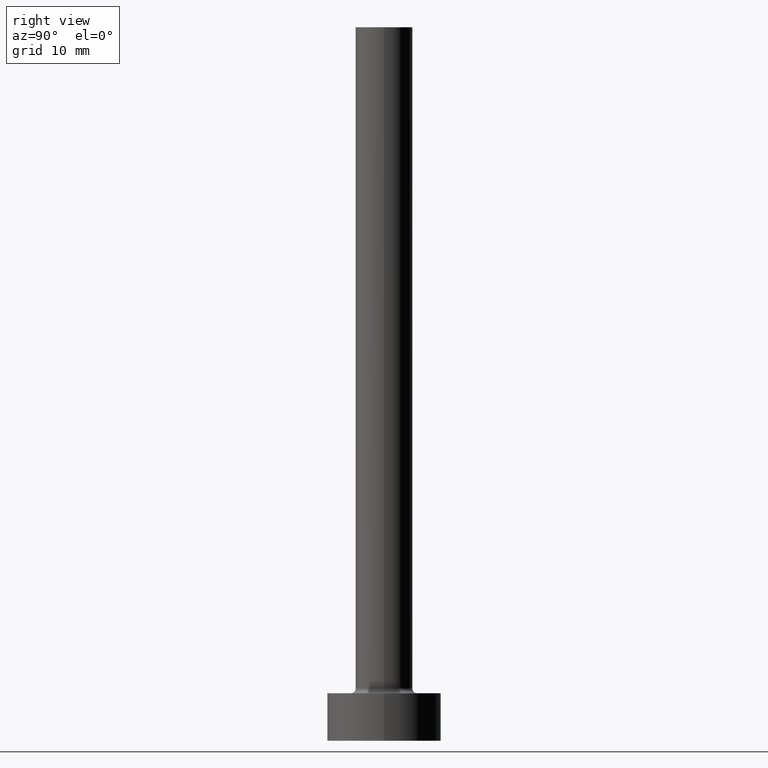
[diagram: clean part render]
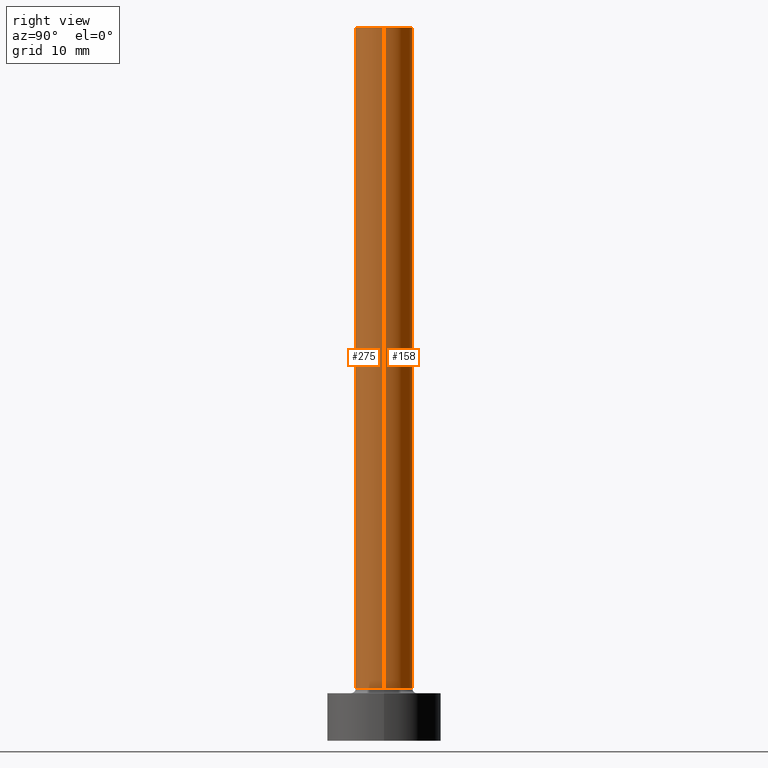
[diagram: same view with one multi-face feature highlighted, each face labeled with its STEP entity id]
A machine part, right view. The highlighted faces form ONE feature: a constant-radius fillet chain: 2 tangent blend faces with common blend radius 3 mm. The faces share edges in the B-rep.
Their STEP definitions:
[1] entity #158 (Cylinder):
#14 = VERTEX_POINT ( 'NONE', #420 ) ;
#34 = CIRCLE ( 'NONE', #293, 3.000000000000000444 ) ;
#40 = EDGE_CURVE ( 'NONE', #222, #290, #380, .T. ) ;
#44 = CIRCLE ( 'NONE', #403, 3.000000000000000444 ) ;
#59 = CARTESIAN_POINT ( 'NONE',  ( 3.000000000000000444, 3.673940397442060361E-16, 5.500000000000005329 ) ) ;
#62 = AXIS2_PLACEMENT_3D ( 'NONE', #427, #81, #248 ) ;
#81 = DIRECTION ( 'NONE',  ( -0.000000000000000000, -0.000000000000000000, -1.000000000000000000 ) ) ;
#85 = VECTOR ( 'NONE', #384, 1000.000000000000000 ) ;
#92 = DIRECTION ( 'NONE',  ( 0.000000000000000000, 0.000000000000000000, 1.000000000000000000 ) ) ;
#158 = ADVANCED_FACE ( 'NONE', ( #314 ), #286, .T. ) ;
#198 = EDGE_CURVE ( 'NONE', #14, #222, #34, .T. ) ;
#207 = CARTESIAN_POINT ( 'NONE',  ( -3.000000000000000444, 0.000000000000000000, 75.00000000000001421 ) ) ;
#222 = VERTEX_POINT ( 'NONE', #207 ) ;
#228 = DIRECTION ( 'NONE',  ( 0.000000000000000000, 0.000000000000000000, 1.000000000000000000 ) ) ;
#231 = CARTESIAN_POINT ( 'NONE',  ( -3.000000000000000444, 0.000000000000000000, 5.500000000000005329 ) ) ;
#238 = DIRECTION ( 'NONE',  ( 1.000000000000000000, 0.000000000000000000, 0.000000000000000000 ) ) ;
#239 = VECTOR ( 'NONE', #372, 1000.000000000000000 ) ;
#248 = DIRECTION ( 'NONE',  ( -1.000000000000000000, 0.000000000000000000, 0.000000000000000000 ) ) ;
#264 = CARTESIAN_POINT ( 'NONE',  ( 0.000000000000000000, 0.000000000000000000, 75.00000000000001421 ) ) ;
#273 = VERTEX_POINT ( 'NONE', #59 ) ;
#286 = CYLINDRICAL_SURFACE ( 'NONE', #62, 3.000000000000000444 ) ;
#290 = VERTEX_POINT ( 'NONE', #231 ) ;
#291 = ORIENTED_EDGE ( 'NONE', *, *, #198, .F. ) ;
#293 = AXIS2_PLACEMENT_3D ( 'NONE', #264, #228, #238 ) ;
#302 = EDGE_CURVE ( 'NONE', #14, #273, #374, .T. ) ;
#310 = CARTESIAN_POINT ( 'NONE',  ( -3.000000000000000444, 0.000000000000000000, 75.00000000000001421 ) ) ;
#314 = FACE_OUTER_BOUND ( 'NONE', #371, .T. ) ;
#361 = ORIENTED_EDGE ( 'NONE', *, *, #302, .T. ) ;
#364 = ORIENTED_EDGE ( 'NONE', *, *, #40, .F. ) ;
#367 = CARTESIAN_POINT ( 'NONE',  ( 3.000000000000000444, 3.673940397442060361E-16, 75.00000000000001421 ) ) ;
#371 = EDGE_LOOP ( 'NONE', ( #291, #361, #448, #364 ) ) ;
#372 = DIRECTION ( 'NONE',  ( -0.000000000000000000, -0.000000000000000000, -1.000000000000000000 ) ) ;
#373 = CARTESIAN_POINT ( 'NONE',  ( 0.000000000000000000, 0.000000000000000000, 5.500000000000005329 ) ) ;
#374 = LINE ( 'NONE', #367, #239 ) ;
#380 = LINE ( 'NONE', #310, #85 ) ;
#384 = DIRECTION ( 'NONE',  ( -0.000000000000000000, -0.000000000000000000, -1.000000000000000000 ) ) ;
#403 = AXIS2_PLACEMENT_3D ( 'NONE', #373, #92, #430 ) ;
#420 = CARTESIAN_POINT ( 'NONE',  ( 3.000000000000000444, 3.673940397442060361E-16, 75.00000000000001421 ) ) ;
#427 = CARTESIAN_POINT ( 'NONE',  ( 0.000000000000000000, 0.000000000000000000, 75.00000000000001421 ) ) ;
#430 = DIRECTION ( 'NONE',  ( 1.000000000000000000, 0.000000000000000000, 0.000000000000000000 ) ) ;
#431 = EDGE_CURVE ( 'NONE', #273, #290, #44, .T. ) ;
#448 = ORIENTED_EDGE ( 'NONE', *, *, #431, .T. ) ;
[2] entity #275 (Cylinder):
#14 = VERTEX_POINT ( 'NONE', #420 ) ;
#24 = CIRCLE ( 'NONE', #383, 3.000000000000000444 ) ;
#40 = EDGE_CURVE ( 'NONE', #222, #290, #380, .T. ) ;
#52 = EDGE_CURVE ( 'NONE', #290, #273, #339, .T. ) ;
#59 = CARTESIAN_POINT ( 'NONE',  ( 3.000000000000000444, 3.673940397442060361E-16, 5.500000000000005329 ) ) ;
#69 = CARTESIAN_POINT ( 'NONE',  ( 0.000000000000000000, 0.000000000000000000, 5.500000000000005329 ) ) ;
#71 = EDGE_CURVE ( 'NONE', #222, #14, #24, .T. ) ;
#78 = ORIENTED_EDGE ( 'NONE', *, *, #302, .F. ) ;
#85 = VECTOR ( 'NONE', #384, 1000.000000000000000 ) ;
#101 = AXIS2_PLACEMENT_3D ( 'NONE', #269, #266, #274 ) ;
#106 = ORIENTED_EDGE ( 'NONE', *, *, #52, .T. ) ;
#127 = CYLINDRICAL_SURFACE ( 'NONE', #101, 3.000000000000000444 ) ;
#155 = CARTESIAN_POINT ( 'NONE',  ( 0.000000000000000000, 0.000000000000000000, 75.00000000000001421 ) ) ;
#207 = CARTESIAN_POINT ( 'NONE',  ( -3.000000000000000444, 0.000000000000000000, 75.00000000000001421 ) ) ;
#213 = DIRECTION ( 'NONE',  ( 1.000000000000000000, 0.000000000000000000, 0.000000000000000000 ) ) ;
#222 = VERTEX_POINT ( 'NONE', #207 ) ;
#227 = DIRECTION ( 'NONE',  ( 1.000000000000000000, 0.000000000000000000, 0.000000000000000000 ) ) ;
#231 = CARTESIAN_POINT ( 'NONE',  ( -3.000000000000000444, 0.000000000000000000, 5.500000000000005329 ) ) ;
#239 = VECTOR ( 'NONE', #372, 1000.000000000000000 ) ;
#266 = DIRECTION ( 'NONE',  ( -0.000000000000000000, -0.000000000000000000, -1.000000000000000000 ) ) ;
#268 = EDGE_LOOP ( 'NONE', ( #78, #422, #296, #106 ) ) ;
#269 = CARTESIAN_POINT ( 'NONE',  ( 0.000000000000000000, 0.000000000000000000, 75.00000000000001421 ) ) ;
#273 = VERTEX_POINT ( 'NONE', #59 ) ;
#274 = DIRECTION ( 'NONE',  ( -1.000000000000000000, 0.000000000000000000, 0.000000000000000000 ) ) ;
#275 = ADVANCED_FACE ( 'NONE', ( #444 ), #127, .T. ) ;
#290 = VERTEX_POINT ( 'NONE', #231 ) ;
#296 = ORIENTED_EDGE ( 'NONE', *, *, #40, .T. ) ;
#302 = EDGE_CURVE ( 'NONE', #14, #273, #374, .T. ) ;
#310 = CARTESIAN_POINT ( 'NONE',  ( -3.000000000000000444, 0.000000000000000000, 75.00000000000001421 ) ) ;
#339 = CIRCLE ( 'NONE', #395, 3.000000000000000444 ) ;
#346 = DIRECTION ( 'NONE',  ( 0.000000000000000000, 0.000000000000000000, 1.000000000000000000 ) ) ;
#367 = CARTESIAN_POINT ( 'NONE',  ( 3.000000000000000444, 3.673940397442060361E-16, 75.00000000000001421 ) ) ;
#372 = DIRECTION ( 'NONE',  ( -0.000000000000000000, -0.000000000000000000, -1.000000000000000000 ) ) ;
#374 = LINE ( 'NONE', #367, #239 ) ;
#380 = LINE ( 'NONE', #310, #85 ) ;
#383 = AXIS2_PLACEMENT_3D ( 'NONE', #155, #459, #227 ) ;
#384 = DIRECTION ( 'NONE',  ( -0.000000000000000000, -0.000000000000000000, -1.000000000000000000 ) ) ;
#395 = AXIS2_PLACEMENT_3D ( 'NONE', #69, #346, #213 ) ;
#420 = CARTESIAN_POINT ( 'NONE',  ( 3.000000000000000444, 3.673940397442060361E-16, 75.00000000000001421 ) ) ;
#422 = ORIENTED_EDGE ( 'NONE', *, *, #71, .F. ) ;
#444 = FACE_OUTER_BOUND ( 'NONE', #268, .T. ) ;
#459 = DIRECTION ( 'NONE',  ( 0.000000000000000000, 0.000000000000000000, 1.000000000000000000 ) ) ;